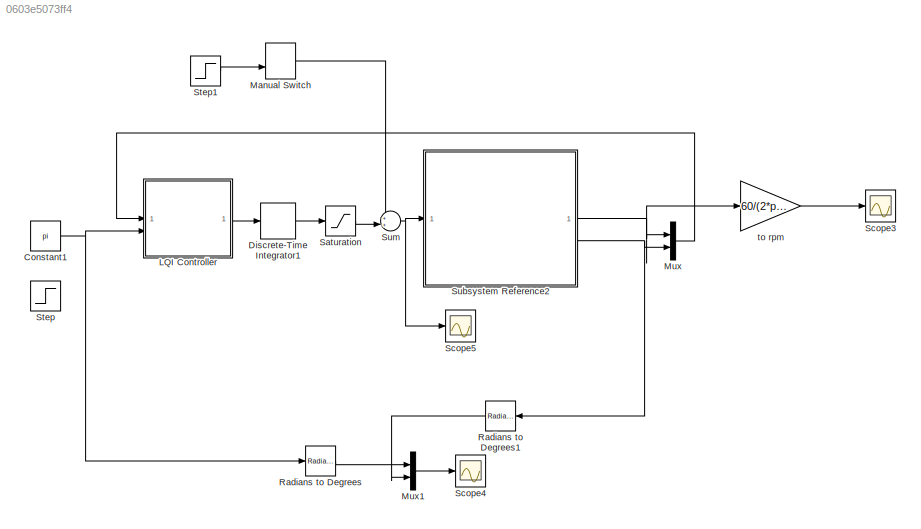
MODEL slx_0603e5073ff4
KIND model
CONFIG AbsTol = auto
CONFIG EnableMultiTasking = on
CONFIG FixedStep = 0.005
CONFIG MaxStep = auto
CONFIG MinStep = auto
CONFIG RelTol = 1e-3
CONFIG SampleTimeConstraint = Unconstrained
CONFIG SolverName = VariableStepAuto
CONFIG StartTime = 0.0
CONFIG StopTime = 2
BLOCK [Constant] Constant1
  Value = pi
BLOCK [DiscreteIntegrator] Discrete-Time Integrator1
  ICPrevOutput = DiscIntNeverNeededParam
  ICPrevScaledInput = DiscIntNeverNeededParam
  InitialConditionSetting = Auto
  IntegratorMethod = Accumulation: Backward Euler
  LimitOutput = on
  LowerSaturationLimit = -12
  SampleTime = Ts
  UpperSaturationLimit = 12
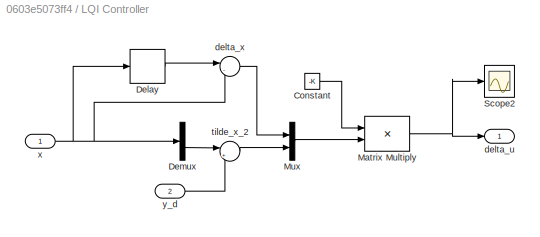
BLOCK [SubSystem] LQI Controller
BLOCK [Constant] LQI Controller/Constant
  Value = -K
  VectorParams1D = off
BLOCK [Delay] LQI Controller/Delay
  DelayLength = 1
  InitialCondition = [0;0]
  InputPortMap = u0
  SampleTime = Ts
BLOCK [Demux] LQI Controller/Demux
  Outputs = 2
BLOCK [Product] LQI Controller/Matrix Multiply
  Multiplication = Matrix(*)
BLOCK [Mux] LQI Controller/Mux
  DisplayOption = bar
  Inputs = 2
BLOCK [Scope] LQI Controller/Scope2
  Floating = off
  NumInputPorts = 1
  ScopeSpecificationString = Simulink.scopes.TimeScopeBlockCfg('CurrentConfiguration', extmgr.ConfigurationSet(extmgr.Configuration('Core','General UI',true),extmgr.Configuration('Core','Source UI',true),extmgr.Configuration('Sources','WiredSimulink',true,'DataLoggingVariableName','ScopeData1'),extmgr.Configuration('Visuals','Time Domain',true,'SerializedDisplays',{struct('MinYLimReal','-523.93588','MaxYLimReal','872.49776','...<+1459ch>
BLOCK [Outport] LQI Controller/delta_u
  SampleTime = Ts
BLOCK [Sum] LQI Controller/delta_x
  Inputs = |-+
  NameLocation = top
BLOCK [Sum] LQI Controller/tilde_x_2
  Inputs = |+-
  NameLocation = top
BLOCK [Inport] LQI Controller/x
  SampleTime = Ts
BLOCK [Inport] LQI Controller/y_d
  Port = 2
  SampleTime = Ts
BLOCK [ManualSwitch] Manual Switch
  CurrentSetting = 0
BLOCK [Mux] Mux
  DisplayOption = bar
  Inputs = 2
BLOCK [Mux] Mux1
  DisplayOption = bar
  Inputs = 2
BLOCK [Reference] Radians to Degrees  REF=simulink_extras/Transformations/Radians
to Degrees
  SourceBlock = simulink_extras/Transformations/Radians\nto Degrees
  SourceType = RadiansToDegrees
BLOCK [Reference] Radians to Degrees1  REF=simulink_extras/Transformations/Radians
to Degrees
  NameLocation = top
  SourceBlock = simulink_extras/Transformations/Radians\nto Degrees
  SourceType = RadiansToDegrees
BLOCK [Saturate] Saturation
  LowerLimit = -12
  UpperLimit = 12
BLOCK [Scope] Scope3
  Floating = off
  NumInputPorts = 1
  ScopeSpecificationString = Simulink.scopes.TimeScopeBlockCfg('CurrentConfiguration', extmgr.ConfigurationSet(extmgr.Configuration('Core','General UI',true),extmgr.Configuration('Core','Source UI',true),extmgr.Configuration('Sources','WiredSimulink',true,'DataLoggingVariableName','ScopeData2'),extmgr.Configuration('Visuals','Time Domain',true,'TimeAxisLabels','All','SerializedDisplays',{struct('MinYLimReal','-10.15981','MaxY...<+1756ch>
BLOCK [Scope] Scope4
  Floating = off
  NumInputPorts = 1
  ScopeSpecificationString = Simulink.scopes.TimeScopeBlockCfg('CurrentConfiguration', extmgr.ConfigurationSet(extmgr.Configuration('Core','General UI',true),extmgr.Configuration('Core','Source UI',true),extmgr.Configuration('Sources','WiredSimulink',true,'DataLoggingVariableName','ScopeData1'),extmgr.Configuration('Visuals','Time Domain',true,'TimeAxisLabels','All','SerializedDisplays',{struct('MinYLimReal','-22.50281','MaxY...<+1771ch>
BLOCK [Scope] Scope5
  Floating = off
  NumInputPorts = 1
  ScopeSpecificationString = Simulink.scopes.TimeScopeBlockCfg('CurrentConfiguration', extmgr.ConfigurationSet(extmgr.Configuration('Core','General UI',true),extmgr.Configuration('Core','Source UI',true),extmgr.Configuration('Sources','WiredSimulink',true,'DataLoggingVariableName','ScopeData3'),extmgr.Configuration('Visuals','Time Domain',true,'TimeAxisLabels','All','SerializedDisplays',{struct('MinYLimReal','-11.625','MaxYLi...<+1745ch>
BLOCK [Step] Step
  After = 2*pi
  Before = pi
  SampleTime = 0
  Time = 5
BLOCK [Step] Step1
  After = -9
  SampleTime = 0
BLOCK [SubSystem] Subsystem Reference2
  ReferencedSubsystem = pololu_37D_pos_second_order_discrete
BLOCK [Sum] Sum
  Inputs = ++|
BLOCK [Gain] to rpm
  Gain = 60/(2*pi)
NET Constant1:1 -> LQI Controller:2, Radians to Degrees:1
LINE Discrete-Time Integrator1:1 -> Saturation:1
LINE LQI Controller/Constant:1 -> LQI Controller/Matrix Multiply:1
LINE LQI Controller/Delay:1 -> LQI Controller/delta_x:1
LINE LQI Controller/Demux:2 -> LQI Controller/tilde_x_2:1
NET LQI Controller/Matrix Multiply:1 -> LQI Controller/Scope2:1, LQI Controller/delta_u:1
LINE LQI Controller/Mux:1 -> LQI Controller/Matrix Multiply:2
LINE LQI Controller/delta_x:1 -> LQI Controller/Mux:1
LINE LQI Controller/tilde_x_2:1 -> LQI Controller/Mux:2
NET LQI Controller/x:1 -> LQI Controller/Delay:1, LQI Controller/Demux:1, LQI Controller/delta_x:2
LINE LQI Controller/y_d:1 -> LQI Controller/tilde_x_2:2
LINE LQI Controller:1 -> Discrete-Time Integrator1:1
LINE Manual Switch:1 -> Sum:1
LINE Mux1:1 -> Scope4:1
LINE Mux:1 -> LQI Controller:1
LINE Radians to Degrees1:1 -> Mux1:2
LINE Radians to Degrees:1 -> Mux1:1
LINE Saturation:1 -> Sum:2
LINE Step1:1 -> Manual Switch:2
NET Subsystem Reference2:1 -> Mux:1, to rpm:1
NET Subsystem Reference2:2 -> Mux:2, Radians to Degrees1:1
NET Sum:1 -> Scope5:1, Subsystem Reference2:1
LINE to rpm:1 -> Scope3:1
note: NET lines group one-source signal fan-out (src -> all destinations, sorted); 1:1 wires keep LINE
